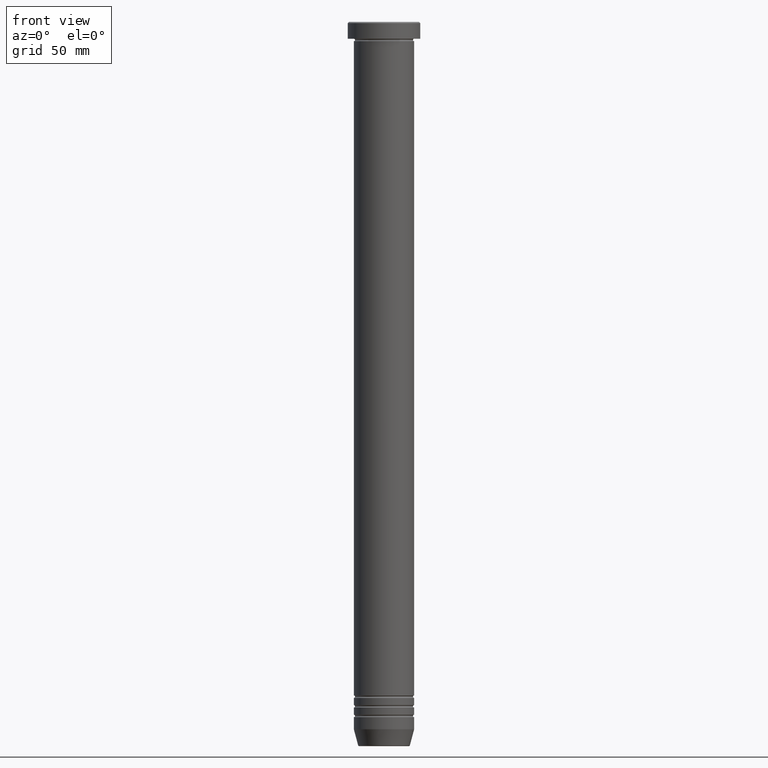
[diagram: clean part render]
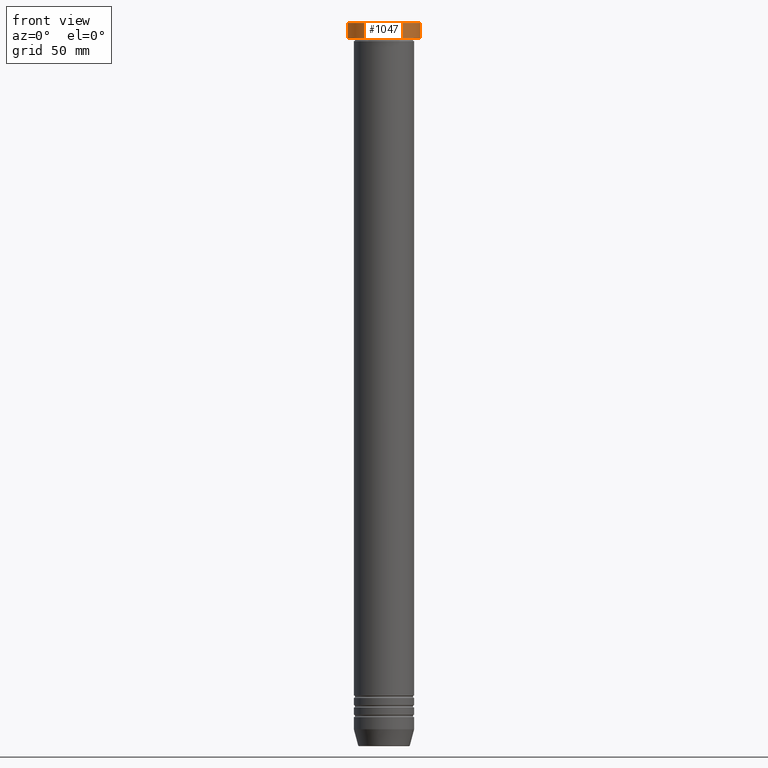
[diagram: same view with one face highlighted and labeled with its STEP entity id]
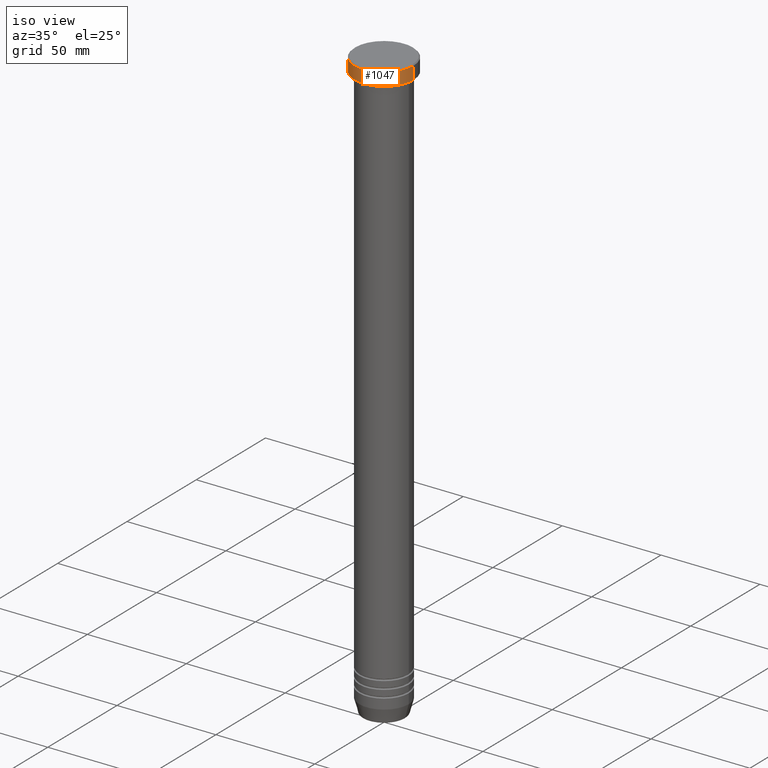
[diagram: same view with one face highlighted and labeled with its STEP entity id]
A machine part, front view. The second image highlights one B-rep face of the part: STEP entity #1047.
A second angle (iso view) of the same face is appended — the face is thin or edge-on in the first view.
In plain terms, the highlighted cylindrical surface (edge-blend (fillet) strip) has radius 15 mm, axis along (-0, -0, 1).
Its self-contained STEP definition (entity closure, byte-faithful):
#4 = CARTESIAN_POINT ( 'NONE',  ( 15.00000000000000000, 0.000000000000000000, -0.5000000000000038858 ) ) ;
#79 = DIRECTION ( 'NONE',  ( -0.000000000000000000, -0.000000000000000000, 1.000000000000000000 ) ) ;
#82 = CYLINDRICAL_SURFACE ( 'NONE', #1011, 15.00000000000000000 ) ;
#110 = DIRECTION ( 'NONE',  ( 1.000000000000000000, 0.000000000000000000, 0.000000000000000000 ) ) ;
#156 = LINE ( 'NONE', #166, #1009 ) ;
#166 = CARTESIAN_POINT ( 'NONE',  ( 15.00000000000000000, 0.000000000000000000, 0.000000000000000000 ) ) ;
#194 = DIRECTION ( 'NONE',  ( -0.000000000000000000, -0.000000000000000000, 1.000000000000000000 ) ) ;
#258 = EDGE_CURVE ( 'NONE', #344, #349, #684, .T. ) ;
#305 = CARTESIAN_POINT ( 'NONE',  ( 15.00000000000000000, 0.000000000000000000, -6.999999999999998224 ) ) ;
#312 = DIRECTION ( 'NONE',  ( -0.000000000000000000, -0.000000000000000000, 1.000000000000000000 ) ) ;
#344 = VERTEX_POINT ( 'NONE', #943 ) ;
#349 = VERTEX_POINT ( 'NONE', #948 ) ;
#365 = ORIENTED_EDGE ( 'NONE', *, *, #678, .T. ) ;
#390 = AXIS2_PLACEMENT_3D ( 'NONE', #587, #921, #110 ) ;
#446 = EDGE_CURVE ( 'NONE', #344, #542, #785, .T. ) ;
#542 = VERTEX_POINT ( 'NONE', #305 ) ;
#548 = VERTEX_POINT ( 'NONE', #4 ) ;
#560 = EDGE_CURVE ( 'NONE', #542, #548, #156, .T. ) ;
#565 = ORIENTED_EDGE ( 'NONE', *, *, #560, .T. ) ;
#587 = CARTESIAN_POINT ( 'NONE',  ( 0.000000000000000000, 0.000000000000000000, -0.5000000000000038858 ) ) ;
#590 = ORIENTED_EDGE ( 'NONE', *, *, #446, .T. ) ;
#611 = DIRECTION ( 'NONE',  ( 1.000000000000000000, 0.000000000000000000, 0.000000000000000000 ) ) ;
#678 = EDGE_CURVE ( 'NONE', #548, #349, #718, .T. ) ;
#684 = LINE ( 'NONE', #689, #823 ) ;
#689 = CARTESIAN_POINT ( 'NONE',  ( -15.00000000000000000, 1.836970198721029589E-15, 0.000000000000000000 ) ) ;
#718 = CIRCLE ( 'NONE', #390, 15.00000000000000000 ) ;
#785 = CIRCLE ( 'NONE', #805, 15.00000000000000000 ) ;
#805 = AXIS2_PLACEMENT_3D ( 'NONE', #857, #1016, #611 ) ;
#823 = VECTOR ( 'NONE', #194, 1000.000000000000000 ) ;
#829 = ORIENTED_EDGE ( 'NONE', *, *, #258, .F. ) ;
#857 = CARTESIAN_POINT ( 'NONE',  ( 0.000000000000000000, 0.000000000000000000, -6.999999999999998224 ) ) ;
#921 = DIRECTION ( 'NONE',  ( 0.000000000000000000, 0.000000000000000000, -1.000000000000000000 ) ) ;
#943 = CARTESIAN_POINT ( 'NONE',  ( -15.00000000000000000, 1.836970198721029589E-15, -6.999999999999998224 ) ) ;
#948 = CARTESIAN_POINT ( 'NONE',  ( -15.00000000000000000, 1.836970198721029589E-15, -0.5000000000000038858 ) ) ;
#964 = DIRECTION ( 'NONE',  ( 1.000000000000000000, 0.000000000000000000, 0.000000000000000000 ) ) ;
#1008 = EDGE_LOOP ( 'NONE', ( #829, #590, #565, #365 ) ) ;
#1009 = VECTOR ( 'NONE', #79, 1000.000000000000000 ) ;
#1011 = AXIS2_PLACEMENT_3D ( 'NONE', #1053, #312, #964 ) ;
#1016 = DIRECTION ( 'NONE',  ( -0.000000000000000000, -0.000000000000000000, 1.000000000000000000 ) ) ;
#1047 = ADVANCED_FACE ( 'NONE', ( #1058 ), #82, .T. ) ;
#1053 = CARTESIAN_POINT ( 'NONE',  ( 0.000000000000000000, 0.000000000000000000, 0.000000000000000000 ) ) ;
#1058 = FACE_OUTER_BOUND ( 'NONE', #1008, .T. ) ;